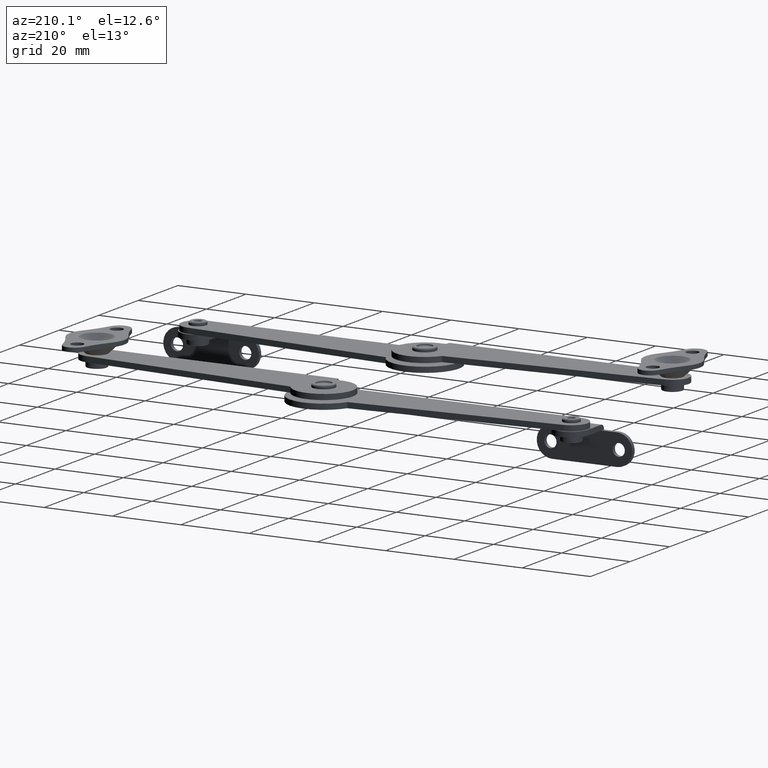
[diagram: clean part render]
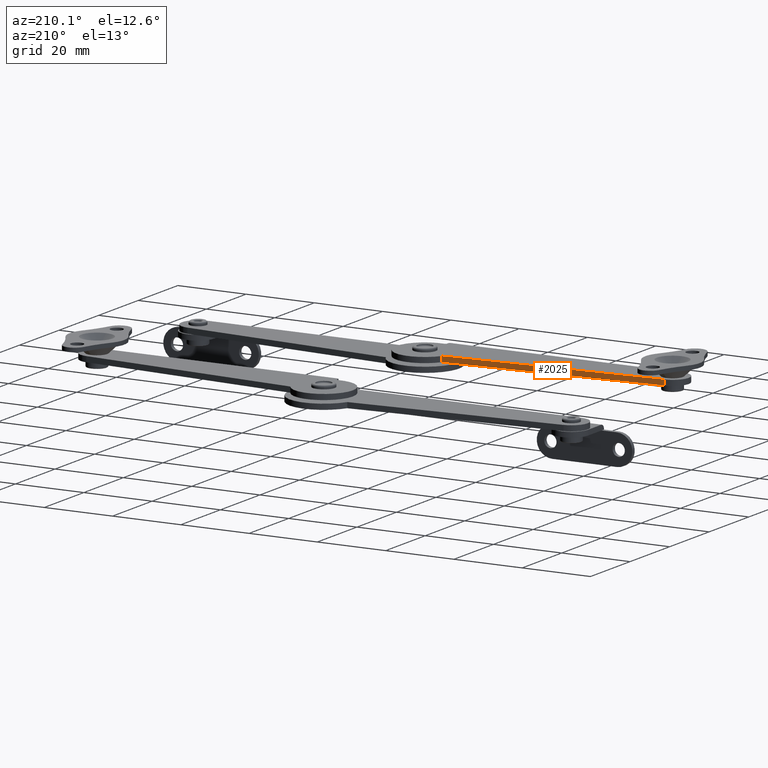
[diagram: same view with one face highlighted and labeled with its STEP entity id]
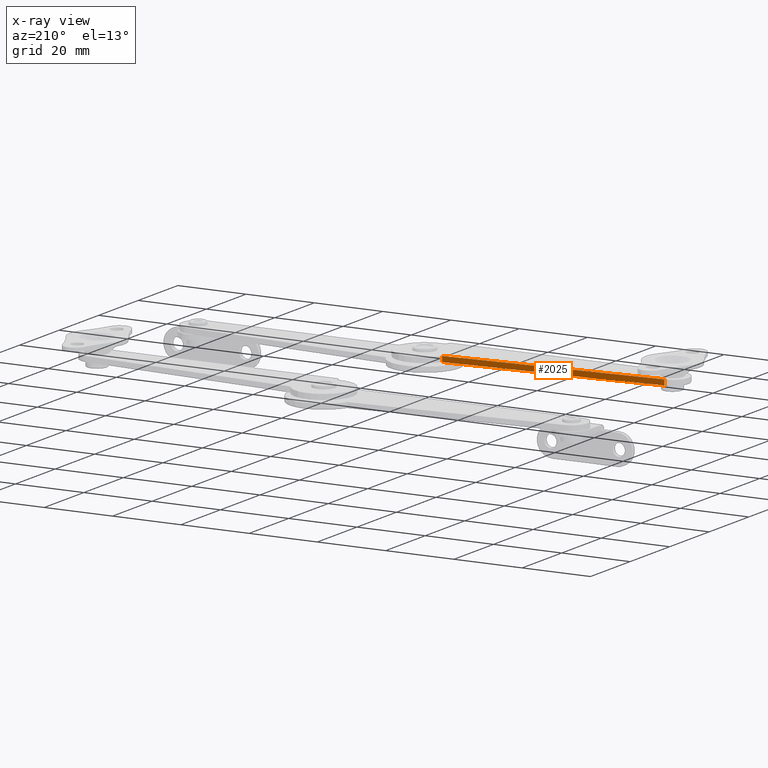
[diagram: x-ray of the same camera — body ghosted, the highlighted face saturated]
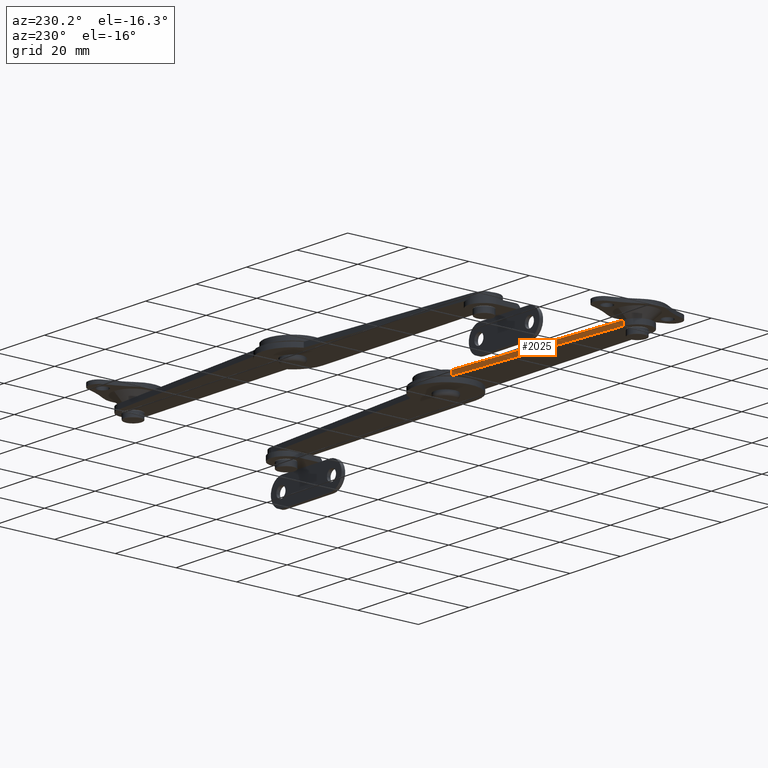
[diagram: same view with one face highlighted and labeled with its STEP entity id]
A machine part, auxiliary view. The second image highlights one B-rep face of the part: STEP entity #2025.
The next image is the same camera in x-ray: the body ghosted, the highlighted face saturated — about 0% of this face is hidden behind the body in this view.
A second angle (auxiliary view) of the same face is appended — the face is thin or edge-on in the first view.
In plain terms, the highlighted planar face has unit normal (-0.0742, 0.9972, 0).
Its self-contained STEP definition (entity closure, byte-faithful):
#286=PLANE('',#2197);
#360=FACE_OUTER_BOUND('',#507,.T.);
#507=EDGE_LOOP('',(#1568,#1569,#1570,#1571));
#866=LINE('',#3259,#965);
#873=LINE('',#3289,#972);
#874=LINE('',#3293,#973);
#875=LINE('',#3294,#974);
#965=VECTOR('',#2544,62.5949089222178);
#972=VECTOR('',#2577,1.6);
#973=VECTOR('',#2582,62.5949089222178);
#974=VECTOR('',#2583,1.6);
#1071=VERTEX_POINT('',#3256);
#1072=VERTEX_POINT('',#3258);
#1082=VERTEX_POINT('',#3288);
#1083=VERTEX_POINT('',#3292);
#1268=EDGE_CURVE('',#1071,#1072,#866,.T.);
#1282=EDGE_CURVE('',#1082,#1072,#873,.T.);
#1284=EDGE_CURVE('',#1083,#1082,#874,.T.);
#1285=EDGE_CURVE('',#1083,#1071,#875,.T.);
#1568=ORIENTED_EDGE('',*,*,#1284,.T.);
#1569=ORIENTED_EDGE('',*,*,#1282,.T.);
#1570=ORIENTED_EDGE('',*,*,#1268,.F.);
#1571=ORIENTED_EDGE('',*,*,#1285,.F.);
#2025=ADVANCED_FACE('',(#360),#286,.T.);
#2197=AXIS2_PLACEMENT_3D('',#3291,#2580,#2581);
#2544=DIRECTION('',(-0.997246238420361,0.074161580056258,0.));
#2577=DIRECTION('',(0.,0.,1.));
#2580=DIRECTION('center_axis',(0.074161580056258,0.997246238420361,0.));
#2581=DIRECTION('ref_axis',(-0.997246238420361,0.074161580056258,0.));
#2582=DIRECTION('',(-0.997246238420361,0.074161580056258,0.));
#2583=DIRECTION('',(0.,0.,1.));
#3256=CARTESIAN_POINT('',(69.8522675052672,-0.513080367503286,3.));
#3258=CARTESIAN_POINT('',(7.42973003832043,4.12905698164594,3.));
#3259=CARTESIAN_POINT('',(69.8522675052672,-0.513080367503286,3.));
#3288=CARTESIAN_POINT('',(7.42973003832043,4.12905698164595,1.4));
#3289=CARTESIAN_POINT('',(7.42973003832043,4.12905698164595,1.4));
#3291=CARTESIAN_POINT('Origin',(69.8522675052672,-0.513080367503286,1.4));
#3292=CARTESIAN_POINT('',(69.8522675052672,-0.513080367503286,1.4));
#3293=CARTESIAN_POINT('',(69.8522675052672,-0.513080367503286,1.4));
#3294=CARTESIAN_POINT('',(69.8522675052672,-0.513080367503286,1.4));